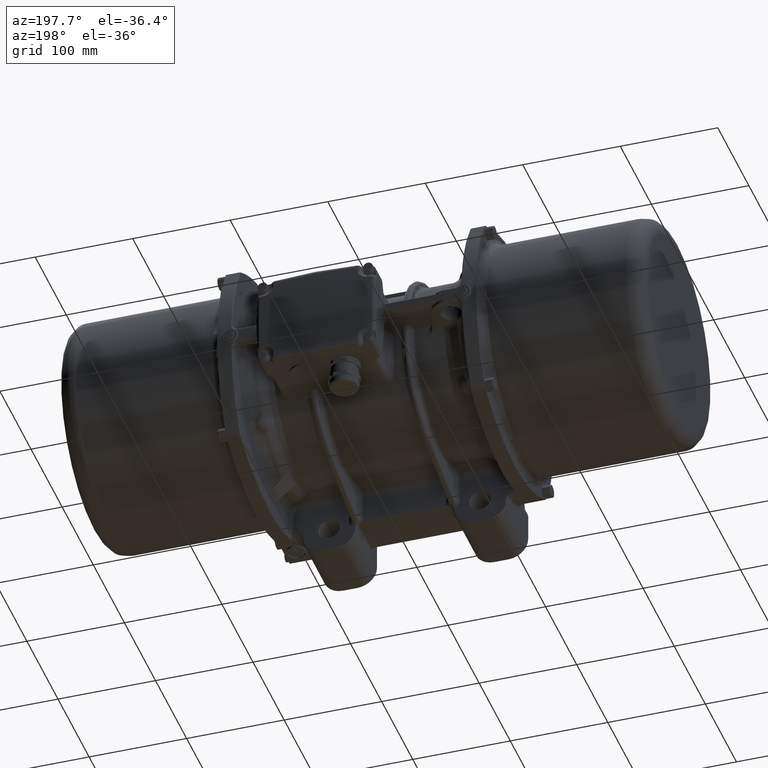
[diagram: clean part render]
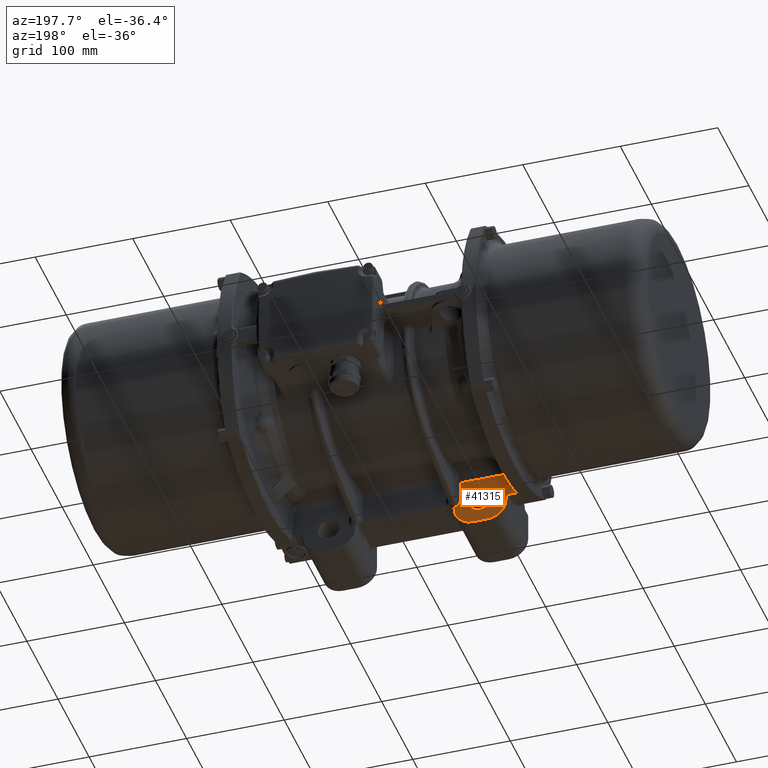
[diagram: same view with one face highlighted and labeled with its STEP entity id]
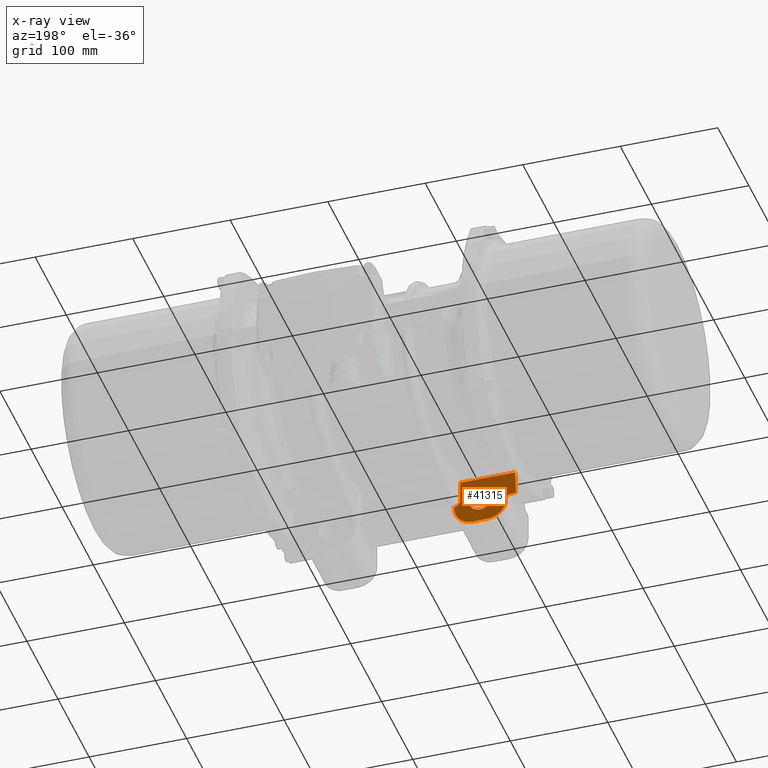
[diagram: x-ray of the same camera — body ghosted, the highlighted face saturated]
A machine part, auxiliary view. The second image highlights one B-rep face of the part: STEP entity #41315.
The next image is the same camera in x-ray: the body ghosted, the highlighted face saturated — about 0% of this face is hidden behind the body in this view.
In plain terms, the highlighted planar face has unit normal (0, 1, 0).
Its self-contained STEP definition (entity closure, byte-faithful):
#164 = VERTEX_POINT ( 'NONE', #53160 ) ;
#928 = EDGE_CURVE ( 'NONE', #118743, #110403, #89566, .T. ) ;
#1151 = EDGE_CURVE ( 'NONE', #103184, #37912, #34626, .T. ) ;
#1210 = DIRECTION ( 'NONE',  ( 0.0000000000000000000, 0.0000000000000000000, 1.000000000000000000 ) ) ;
#2298 = CARTESIAN_POINT ( 'NONE',  ( -51.41359433510076800, -60.00000000000000000, -114.7967848396458800 ) ) ;
#2321 = CARTESIAN_POINT ( 'NONE',  ( -50.43977542599999700, -60.00000000000000000, -114.8428525389999900 ) ) ;
#2897 = ORIENTED_EDGE ( 'NONE', *, *, #45733, .F. ) ;
#2977 = CARTESIAN_POINT ( 'NONE',  ( -114.1418216890126000, -60.00000000000000000, -103.7923678452765900 ) ) ;
#3567 = EDGE_CURVE ( 'NONE', #37912, #64193, #78223, .T. ) ;
#3678 = CIRCLE ( 'NONE', #115186, 5.000000000000004400 ) ;
#6802 = LINE ( 'NONE', #60826, #108791 ) ;
#6871 = DIRECTION ( 'NONE',  ( -1.000000000000000000, -7.304098846218133700E-016, 0.0000000000000000000 ) ) ;
#8259 = CARTESIAN_POINT ( 'NONE',  ( -104.0000000000000000, -60.00000000000000000, -111.5000000000000000 ) ) ;
#9088 = CARTESIAN_POINT ( 'NONE',  ( -109.0000000000000000, -60.00000000000000000, -111.5000000000000000 ) ) ;
#9203 = EDGE_CURVE ( 'NONE', #99288, #116385, #25961, .T. ) ;
#10109 = ORIENTED_EDGE ( 'NONE', *, *, #56724, .T. ) ;
#11467 = CARTESIAN_POINT ( 'NONE',  ( -54.00569893171373100, -59.99999999999999300, -113.8963337205190100 ) ) ;
#12236 = DIRECTION ( 'NONE',  ( 1.000000000000000000, 0.0000000000000000000, 0.0000000000000000000 ) ) ;
#13222 = CARTESIAN_POINT ( 'NONE',  ( -52.31762536202424500, -60.00000000000000000, -114.6125140422291700 ) ) ;
#17135 = ORIENTED_EDGE ( 'NONE', *, *, #98908, .T. ) ;
#17442 = AXIS2_PLACEMENT_3D ( 'NONE', #60364, #101611, #20966 ) ;
#18859 = CARTESIAN_POINT ( 'NONE',  ( -77.50000000000000000, -60.00000000000000000, -112.5000000000000000 ) ) ;
#19144 = ORIENTED_EDGE ( 'NONE', *, *, #123714, .T. ) ;
#19623 = VERTEX_POINT ( 'NONE', #121545 ) ;
#20146 = DIRECTION ( 'NONE',  ( 0.0000000000000000000, 0.0000000000000000000, -1.000000000000000000 ) ) ;
#20966 = DIRECTION ( 'NONE',  ( 1.000000000000000000, 0.0000000000000000000, 0.0000000000000000000 ) ) ;
#21151 = CARTESIAN_POINT ( 'NONE',  ( -57.50000000000000000, -60.00000000000000000, -107.6728959390000000 ) ) ;
#22020 = CARTESIAN_POINT ( 'NONE',  ( -55.12606623598240700, -59.99999999999999300, -113.0744124297865300 ) ) ;
#22050 = CARTESIAN_POINT ( 'NONE',  ( -113.6286133860000000, -60.00000000000000000, -90.08963966299998600 ) ) ;
#22073 = VECTOR ( 'NONE', #125945, 1000.000000000000000 ) ;
#23133 = CARTESIAN_POINT ( 'NONE',  ( -114.4414654031746000, -60.00000000000000000, -111.5000000005374100 ) ) ;
#24444 = CARTESIAN_POINT ( 'NONE',  ( -113.6286133860000000, -60.00000000000000000, -90.08963966299998600 ) ) ;
#25003 = CARTESIAN_POINT ( 'NONE',  ( -104.0000000000000000, -60.00000000000000000, -117.5000000000000000 ) ) ;
#25509 = CARTESIAN_POINT ( 'NONE',  ( -45.00000000000000000, -60.00000000000000000, -117.5000000000000000 ) ) ;
#25530 = ORIENTED_EDGE ( 'NONE', *, *, #1151, .T. ) ;
#25961 = CIRCLE ( 'NONE', #55492, 10.99999999999999600 ) ;
#26567 = DIRECTION ( 'NONE',  ( -6.234438335368169800E-016, 1.000000000000000000, 6.234438335368159900E-016 ) ) ;
#27115 = DIRECTION ( 'NONE',  ( 0.0000000000000000000, 0.0000000000000000000, 1.000000000000000000 ) ) ;
#27143 = B_SPLINE_CURVE_WITH_KNOTS ( 'NONE', 3,
 ( #23133, #2977, #84421, #24444 ),
 .UNSPECIFIED., .F., .F.,
 ( 4, 4 ),
 ( 0.0000000000000000000, 1.000000000000000000 ),
 .UNSPECIFIED. ) ;
#28195 = CARTESIAN_POINT ( 'NONE',  ( -88.50000000000000000, -60.00000000000000000, -112.5000000000000000 ) ) ;
#29357 = ORIENTED_EDGE ( 'NONE', *, *, #3567, .T. ) ;
#29593 = CARTESIAN_POINT ( 'NONE',  ( -66.50000000000000000, -60.00000000000000000, -112.5000000000000000 ) ) ;
#29728 = DIRECTION ( 'NONE',  ( 1.000000000000000000, 0.0000000000000000000, 0.0000000000000000000 ) ) ;
#30091 = CARTESIAN_POINT ( 'NONE',  ( -113.6286133860000000, -60.00000000000000000, -90.08963966299998600 ) ) ;
#31287 = EDGE_LOOP ( 'NONE', ( #19144, #122178, #119077, #17135, #37363, #2897, #104780, #39303, #25530, #29357, #37554, #10109, #114216 ) ) ;
#34626 = LINE ( 'NONE', #36082, #22073 ) ;
#34758 = EDGE_CURVE ( 'NONE', #116385, #99288, #43301, .T. ) ;
#36082 = CARTESIAN_POINT ( 'NONE',  ( -82.41050813450000600, -60.00000000000000000, -136.5000000000000000 ) ) ;
#37089 = VERTEX_POINT ( 'NONE', #22050 ) ;
#37363 = ORIENTED_EDGE ( 'NONE', *, *, #83990, .T. ) ;
#37554 = ORIENTED_EDGE ( 'NONE', *, *, #73409, .T. ) ;
#37912 = VERTEX_POINT ( 'NONE', #121226 ) ;
#39303 = ORIENTED_EDGE ( 'NONE', *, *, #65171, .T. ) ;
#40209 = EDGE_CURVE ( 'NONE', #52824, #87633, #104900, .T. ) ;
#41315 = ADVANCED_FACE ( 'NONE', ( #101603, #62301 ), #100171, .T. ) ;
#43301 = CIRCLE ( 'NONE', #17442, 10.99999999999999600 ) ;
#43442 = CARTESIAN_POINT ( 'NONE',  ( -50.50000000000000000, -59.99999999994960100, -114.8428525389999900 ) ) ;
#45733 = EDGE_CURVE ( 'NONE', #92389, #19623, #118352, .T. ) ;
#46915 = DIRECTION ( 'NONE',  ( 0.0000000000000000000, 1.000000000000000000, 0.0000000000000000000 ) ) ;
#47098 = B_SPLINE_CURVE_WITH_KNOTS ( 'NONE', 3,
 ( #30091, #91408, #130043, #121645 ),
 .UNSPECIFIED., .F., .F.,
 ( 4, 4 ),
 ( 0.0000000000000000000, 1.000000000000000000 ),
 .UNSPECIFIED. ) ;
#50440 = CARTESIAN_POINT ( 'NONE',  ( -57.45491196271666500, -60.00000000000000700, -108.6088815535919600 ) ) ;
#51065 = DIRECTION ( 'NONE',  ( -0.0000000000000000000, -1.000000000000000000, -0.0000000000000000000 ) ) ;
#51469 = VERTEX_POINT ( 'NONE', #61629 ) ;
#52079 = B_SPLINE_CURVE_WITH_KNOTS ( 'NONE', 3,
 ( #21151, #91215, #50440, #121883, #63112, #103523, #92516, #61390, #71468, #22020, #92079, #11467, #112706, #102642, #13222, #2298, #122313, #43442 ),
 .UNSPECIFIED., .F., .F.,
 ( 4, 2, 2, 2, 2, 2, 2, 2, 4 ),
 ( 0.0000000000000000000, 0.1250000000000000000, 0.2500000000000000000, 0.3750000000000000000, 0.5000000000000000000, 0.6250000000000000000, 0.7500000000000000000, 0.8750000000000000000, 1.000000000000000000 ),
 .UNSPECIFIED. ) ;
#52824 = VERTEX_POINT ( 'NONE', #58439 ) ;
#53041 = DIRECTION ( 'NONE',  ( -1.000000000000000000, -0.0000000000000000000, -0.0000000000000000000 ) ) ;
#53160 = CARTESIAN_POINT ( 'NONE',  ( -57.50000000000000000, -60.00000000000000000, -107.6728959390000000 ) ) ;
#54589 = CARTESIAN_POINT ( 'NONE',  ( -109.0000000000000000, -60.00000000000000000, -116.5000000000000000 ) ) ;
#55492 = AXIS2_PLACEMENT_3D ( 'NONE', #18859, #78357, #29728 ) ;
#56724 = EDGE_CURVE ( 'NONE', #60967, #118743, #3678, .T. ) ;
#58439 = CARTESIAN_POINT ( 'NONE',  ( -112.9668738610000000, -60.00000000000000000, -86.50000000000000000 ) ) ;
#60364 = CARTESIAN_POINT ( 'NONE',  ( -77.50000000000000000, -60.00000000000000000, -112.5000000000000000 ) ) ;
#60826 = CARTESIAN_POINT ( 'NONE',  ( -57.50000000000000000, -60.00000000000000000, -111.5000000000000000 ) ) ;
#60967 = VERTEX_POINT ( 'NONE', #125309 ) ;
#61390 = CARTESIAN_POINT ( 'NONE',  ( -56.06399643735549900, -59.99999999999999300, -112.0484570882272500 ) ) ;
#61629 = CARTESIAN_POINT ( 'NONE',  ( -50.99999999999000300, -60.00000000000000000, -117.5000000000000000 ) ) ;
#62147 = CARTESIAN_POINT ( 'NONE',  ( -82.41050813450000600, -60.00000000000000000, -86.50000000000000000 ) ) ;
#62301 = FACE_OUTER_BOUND ( 'NONE', #31287, .T. ) ;
#62864 = VECTOR ( 'NONE', #129750, 1000.000000000000000 ) ;
#63112 = CARTESIAN_POINT ( 'NONE',  ( -57.14231254198835300, -60.00000000000000700, -109.9834939475167800 ) ) ;
#64193 = VERTEX_POINT ( 'NONE', #25003 ) ;
#65129 = AXIS2_PLACEMENT_3D ( 'NONE', #123857, #84828, #105499 ) ;
#65171 = EDGE_CURVE ( 'NONE', #51469, #103184, #71668, .T. ) ;
#68452 = VECTOR ( 'NONE', #27115, 1000.000000000000000 ) ;
#69222 = CARTESIAN_POINT ( 'NONE',  ( -82.41050813450000600, -60.00000000000000000, -111.5000000000000000 ) ) ;
#71468 = CARTESIAN_POINT ( 'NONE',  ( -55.77342870101761500, -60.00000000000000700, -112.4112293142134000 ) ) ;
#71668 = CIRCLE ( 'NONE', #84812, 19.00000000000000400 ) ;
#73409 = EDGE_CURVE ( 'NONE', #64193, #60967, #90358, .T. ) ;
#75964 = ORIENTED_EDGE ( 'NONE', *, *, #34758, .T. ) ;
#78223 = CIRCLE ( 'NONE', #65129, 19.00000000000000400 ) ;
#78252 = DIRECTION ( 'NONE',  ( 0.0000000000000000000, 1.000000000000000000, 0.0000000000000000000 ) ) ;
#78357 = DIRECTION ( 'NONE',  ( -3.154042683594195100E-016, -1.000000000000000000, 0.0000000000000000000 ) ) ;
#82558 = CARTESIAN_POINT ( 'NONE',  ( -57.50000000000000000, -60.00000000000000000, -86.50000000000000000 ) ) ;
#83990 = EDGE_CURVE ( 'NONE', #164, #19623, #52079, .T. ) ;
#84395 = CARTESIAN_POINT ( 'NONE',  ( -70.00000000000000000, -60.00000000000000000, -136.5000000000000000 ) ) ;
#84421 = CARTESIAN_POINT ( 'NONE',  ( -113.8708710396632100, -60.00000000000000000, -96.65558106520165900 ) ) ;
#84812 = AXIS2_PLACEMENT_3D ( 'NONE', #126043, #26567, #6871 ) ;
#84828 = DIRECTION ( 'NONE',  ( 6.234438335368200300E-016, 1.000000000000000000, 6.234438335368159900E-016 ) ) ;
#87633 = VERTEX_POINT ( 'NONE', #82558 ) ;
#89566 = LINE ( 'NONE', #69222, #62864 ) ;
#90358 = LINE ( 'NONE', #8259, #68452 ) ;
#91215 = CARTESIAN_POINT ( 'NONE',  ( -57.50000000000000000, -60.00000000000000000, -108.1420475391138900 ) ) ;
#91408 = CARTESIAN_POINT ( 'NONE',  ( -113.5830369241591700, -60.00000000000000000, -88.85437477224221000 ) ) ;
#92079 = CARTESIAN_POINT ( 'NONE',  ( -54.77180386853627400, -60.00000000000000000, -113.3719237066060300 ) ) ;
#92389 = VERTEX_POINT ( 'NONE', #117336 ) ;
#92516 = CARTESIAN_POINT ( 'NONE',  ( -56.57585907301948000, -60.00000000000000700, -111.2636715807726800 ) ) ;
#92966 = EDGE_CURVE ( 'NONE', #37089, #52824, #47098, .T. ) ;
#93166 = CIRCLE ( 'NONE', #107346, 5.999999999960051500 ) ;
#94716 = EDGE_LOOP ( 'NONE', ( #113506, #75964 ) ) ;
#97385 = CARTESIAN_POINT ( 'NONE',  ( -114.4414654031746000, -60.00000000000000000, -111.5000000005374100 ) ) ;
#98470 = DIRECTION ( 'NONE',  ( 0.0000000000000000000, 0.0000000000000000000, 1.000000000000000000 ) ) ;
#98908 = EDGE_CURVE ( 'NONE', #87633, #164, #6802, .T. ) ;
#99288 = VERTEX_POINT ( 'NONE', #29593 ) ;
#100171 = PLANE ( 'NONE',  #114797 ) ;
#101603 = FACE_BOUND ( 'NONE', #94716, .T. ) ;
#101611 = DIRECTION ( 'NONE',  ( -3.154042683594195100E-016, -1.000000000000000000, 0.0000000000000000000 ) ) ;
#102642 = CARTESIAN_POINT ( 'NONE',  ( -52.75583593905680900, -59.99999999999999300, -114.4765558935725900 ) ) ;
#103184 = VERTEX_POINT ( 'NONE', #84395 ) ;
#103523 = CARTESIAN_POINT ( 'NONE',  ( -56.79200091401167300, -59.99999999999999300, -110.8499451344831600 ) ) ;
#104780 = ORIENTED_EDGE ( 'NONE', *, *, #126907, .F. ) ;
#104900 = LINE ( 'NONE', #62147, #122037 ) ;
#105499 = DIRECTION ( 'NONE',  ( -1.000000000000000000, 7.304098846218133700E-016, 0.0000000000000000000 ) ) ;
#107346 = AXIS2_PLACEMENT_3D ( 'NONE', #25509, #46915, #107459 ) ;
#107459 = DIRECTION ( 'NONE',  ( 0.0000000000000000000, 0.0000000000000000000, 1.000000000000000000 ) ) ;
#108791 = VECTOR ( 'NONE', #20146, 1000.000000000000000 ) ;
#110403 = VERTEX_POINT ( 'NONE', #97385 ) ;
#112706 = CARTESIAN_POINT ( 'NONE',  ( -53.60173211394320000, -60.00000000000000000, -114.1175882894274200 ) ) ;
#113506 = ORIENTED_EDGE ( 'NONE', *, *, #9203, .T. ) ;
#114216 = ORIENTED_EDGE ( 'NONE', *, *, #928, .T. ) ;
#114797 = AXIS2_PLACEMENT_3D ( 'NONE', #129143, #78252, #98470 ) ;
#115186 = AXIS2_PLACEMENT_3D ( 'NONE', #54589, #51065, #1210 ) ;
#116385 = VERTEX_POINT ( 'NONE', #28195 ) ;
#117336 = CARTESIAN_POINT ( 'NONE',  ( -50.37955085211969900, -59.99999999996640600, -114.8428525391487900 ) ) ;
#118352 = LINE ( 'NONE', #2321, #124606 ) ;
#118743 = VERTEX_POINT ( 'NONE', #9088 ) ;
#119077 = ORIENTED_EDGE ( 'NONE', *, *, #40209, .T. ) ;
#121226 = CARTESIAN_POINT ( 'NONE',  ( -85.00000000000000000, -60.00000000000000000, -136.5000000000000000 ) ) ;
#121545 = CARTESIAN_POINT ( 'NONE',  ( -50.50000000000000000, -59.99999999994960100, -114.8428525389999900 ) ) ;
#121645 = CARTESIAN_POINT ( 'NONE',  ( -112.9668738610000000, -60.00000000000000000, -86.50000000000000000 ) ) ;
#121883 = CARTESIAN_POINT ( 'NONE',  ( -57.27523377128332500, -60.00000000000000000, -109.5344427096580500 ) ) ;
#122037 = VECTOR ( 'NONE', #12236, 1000.000000000000000 ) ;
#122178 = ORIENTED_EDGE ( 'NONE', *, *, #92966, .T. ) ;
#122313 = CARTESIAN_POINT ( 'NONE',  ( -50.95839105224661100, -60.00000000000000700, -114.8428525390000200 ) ) ;
#123714 = EDGE_CURVE ( 'NONE', #110403, #37089, #27143, .T. ) ;
#123857 = CARTESIAN_POINT ( 'NONE',  ( -85.00000000000000000, -60.00000000000000000, -117.5000000000000000 ) ) ;
#124606 = VECTOR ( 'NONE', #53041, 1000.000000000000000 ) ;
#125309 = CARTESIAN_POINT ( 'NONE',  ( -104.0000000000000000, -60.00000000000000000, -116.5000000000000000 ) ) ;
#125945 = DIRECTION ( 'NONE',  ( -1.000000000000000000, 0.0000000000000000000, 0.0000000000000000000 ) ) ;
#126043 = CARTESIAN_POINT ( 'NONE',  ( -70.00000000000000000, -60.00000000000000000, -117.5000000000000000 ) ) ;
#126907 = EDGE_CURVE ( 'NONE', #51469, #92389, #93166, .T. ) ;
#129143 = CARTESIAN_POINT ( 'NONE',  ( -114.8258369040000000, -60.00000000000000000, -136.5000000000000000 ) ) ;
#129750 = DIRECTION ( 'NONE',  ( -1.000000000000000000, 0.0000000000000000000, 0.0000000000000000000 ) ) ;
#130043 = CARTESIAN_POINT ( 'NONE',  ( -113.3624570824925100, -60.00000000000000000, -87.65782821790887200 ) ) ;